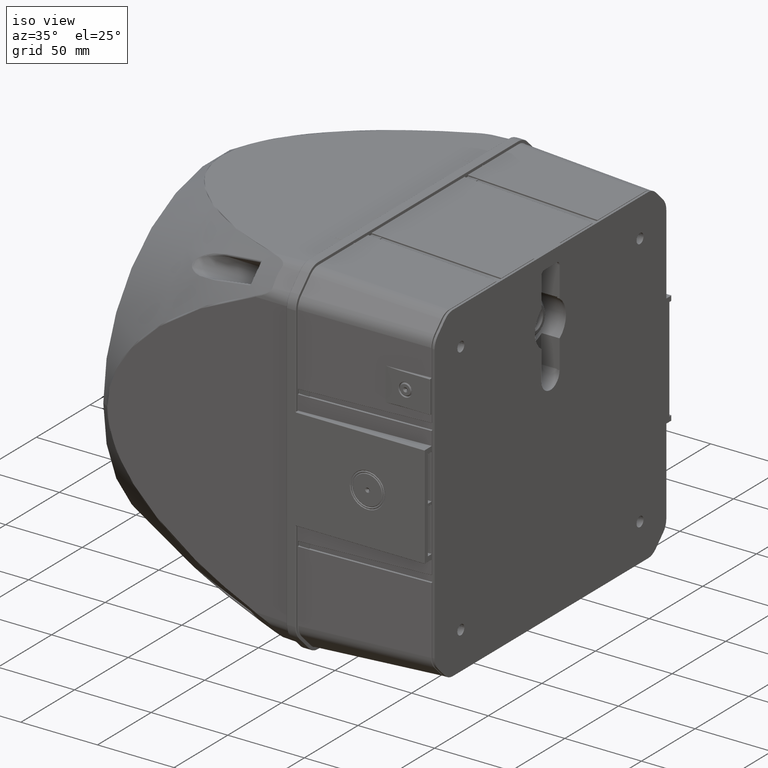
[diagram: clean part render]
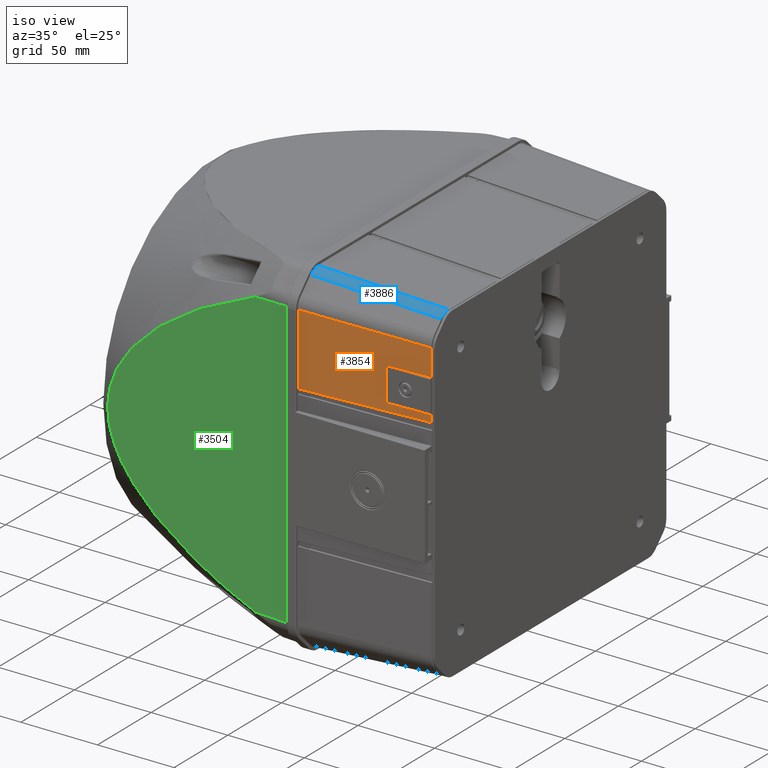
[diagram: same view with three faces highlighted in distinct colors, each labeled with its STEP entity id]
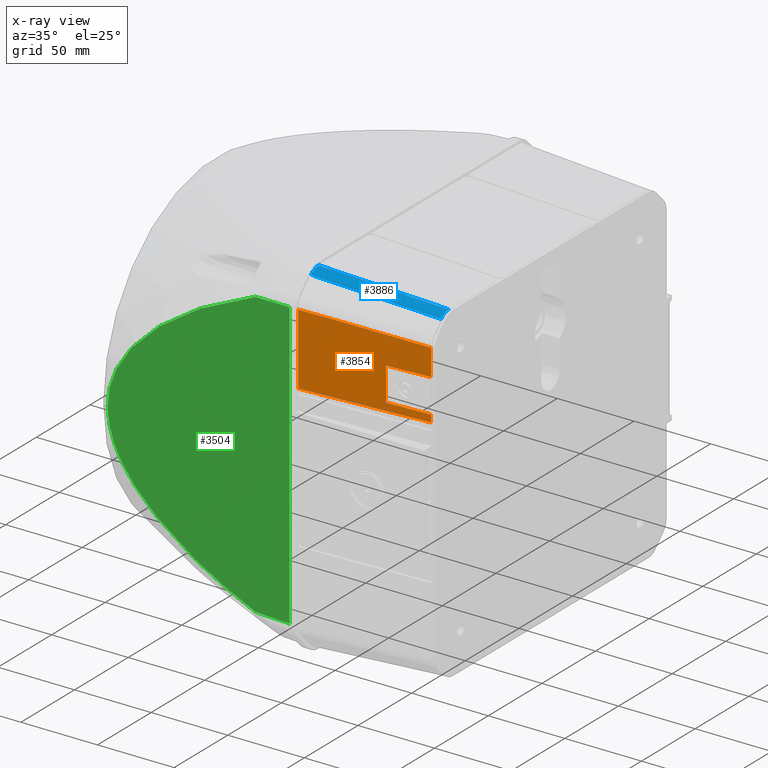
[diagram: x-ray of the same camera — body ghosted, the three highlighted faces saturated]
A machine part, iso view with three faces highlighted in distinct colors.
The next image is the same camera in x-ray (body ghosted, the three faces saturated) — at least one of them is partly hidden behind the body in this view.
Their STEP definitions:

[orange] entity #3854 — the highlighted planar face has unit normal (0.0523, -0.9986, -0).
#601=ELLIPSE('',#23725,0.450617555699064,0.45);
#3340=B_SPLINE_CURVE_WITH_KNOTS('',3,(#41978,#41979,#41980,#41981,#41982,
#41983,#41984,#41985,#41986,#41987),.UNSPECIFIED.,.F.,.F.,(4,3,3,4),(0.,
0.219196768796475,0.413723946201649,1.),.UNSPECIFIED.);
#3341=B_SPLINE_CURVE_WITH_KNOTS('',3,(#41991,#41992,#41993,#41994,#41995,
#41996,#41997,#41998,#41999,#42000),.UNSPECIFIED.,.F.,.F.,(4,3,3,4),(0.,
0.626730348909756,0.780695238212781,1.),.UNSPECIFIED.);
#3854=ADVANCED_FACE('',(#5703),#5143,.T.);
#5143=PLANE('',#23726);
#5703=FACE_OUTER_BOUND('',#7197,.T.);
#7197=EDGE_LOOP('',(#10398,#10399,#10400,#10401,#10402,#10403,#10404,#10405,
#10406,#10407,#10408));
#10398=ORIENTED_EDGE('',*,*,#18270,.T.);
#10399=ORIENTED_EDGE('',*,*,#18271,.T.);
#10400=ORIENTED_EDGE('',*,*,#18272,.T.);
#10401=ORIENTED_EDGE('',*,*,#18273,.T.);
#10402=ORIENTED_EDGE('',*,*,#18274,.T.);
#10403=ORIENTED_EDGE('',*,*,#18275,.T.);
#10404=ORIENTED_EDGE('',*,*,#18276,.T.);
#10405=ORIENTED_EDGE('',*,*,#18277,.T.);
#10406=ORIENTED_EDGE('',*,*,#18278,.T.);
#10407=ORIENTED_EDGE('',*,*,#18279,.T.);
#10408=ORIENTED_EDGE('',*,*,#18280,.T.);
#16008=VERTEX_POINT('',#41962);
#16009=VERTEX_POINT('',#41963);
#16010=VERTEX_POINT('',#41965);
#16011=VERTEX_POINT('',#41967);
#16012=VERTEX_POINT('',#41969);
#16013=VERTEX_POINT('',#41971);
#16014=VERTEX_POINT('',#41973);
#16015=VERTEX_POINT('',#41975);
#16016=VERTEX_POINT('',#41977);
#16017=VERTEX_POINT('',#41988);
#16018=VERTEX_POINT('',#41990);
#18270=EDGE_CURVE('',#16008,#16009,#20883,.T.);
#18271=EDGE_CURVE('',#16009,#16010,#20884,.T.);
#18272=EDGE_CURVE('',#16010,#16011,#20885,.T.);
#18273=EDGE_CURVE('',#16011,#16012,#20886,.T.);
#18274=EDGE_CURVE('',#16012,#16013,#601,.T.);
#18275=EDGE_CURVE('',#16013,#16014,#20887,.T.);
#18276=EDGE_CURVE('',#16014,#16015,#20888,.T.);
#18277=EDGE_CURVE('',#16015,#16016,#20889,.T.);
#18278=EDGE_CURVE('',#16016,#16017,#3340,.T.);
#18279=EDGE_CURVE('',#16017,#16018,#20890,.T.);
#18280=EDGE_CURVE('',#16018,#16008,#3341,.T.);
#20883=LINE('',#41961,#22250);
#20884=LINE('',#41964,#22251);
#20885=LINE('',#41966,#22252);
#20886=LINE('',#41968,#22253);
#20887=LINE('',#41972,#22254);
#20888=LINE('',#41974,#22255);
#20889=LINE('',#41976,#22256);
#20890=LINE('',#41989,#22257);
#22250=VECTOR('',#27850,1.);
#22251=VECTOR('',#27851,1.);
#22252=VECTOR('',#27852,1.);
#22253=VECTOR('',#27853,1.);
#22254=VECTOR('',#27856,1.);
#22255=VECTOR('',#27857,1.);
#22256=VECTOR('',#27858,1.);
#22257=VECTOR('',#27859,1.);
#23725=AXIS2_PLACEMENT_3D('',#41970,#27854,#27855);
#23726=AXIS2_PLACEMENT_3D('',#42001,#27860,#27861);
#27850=DIRECTION('',(0.0523359562429438,2.60948728907295E-016,-0.998629534754574));
#27851=DIRECTION('',(0.,-1.,0.));
#27852=DIRECTION('',(-0.0523236630107089,-0.0216731708520751,0.998394965909964));
#27853=DIRECTION('',(0.,1.,0.));
#27854=DIRECTION('',(0.998629534754574,1.23259516440783E-032,0.0523359562429438));
#27855=DIRECTION('',(0.0523359562429438,-1.16994743359398E-015,-0.998629534754574));
#27856=DIRECTION('',(0.0523339689081494,-0.00871457699362754,-0.998591614147717));
#27857=DIRECTION('',(0.,-1.,0.));
#27858=DIRECTION('',(-0.0523359562429438,2.17457274089412E-016,0.998629534754574));
#27859=DIRECTION('',(0.,-1.,0.));
#27860=DIRECTION('',(-0.998629534754574,0.,-0.0523359562429438));
#27861=DIRECTION('',(-0.0523359562429438,0.,0.998629534754574));
#41961=CARTESIAN_POINT('',(-112.5,-74.0000000000001,-128.348824256376));
#41962=CARTESIAN_POINT('',(-109.283025771477,-74.0000000000001,-189.732349231717));
#41963=CARTESIAN_POINT('',(-107.793232858134,-74.0000000000001,-218.159291447624));
#41964=CARTESIAN_POINT('',(-107.793232858134,-5.55111512312578E-014,-218.159291447624));
#41965=CARTESIAN_POINT('',(-107.793232858134,-91.4139342440904,-218.159291447624));
#41966=CARTESIAN_POINT('',(-112.394123906328,-93.3196857152532,-130.369060471694));
#41967=CARTESIAN_POINT('',(-112.173137082292,-93.2281499756317,-134.585740267315));
#41968=CARTESIAN_POINT('',(-112.173137082292,-5.55111512312578E-014,-134.585740267315));
#41969=CARTESIAN_POINT('',(-112.173137082292,-46.6099153176139,-134.585740267315));
#41970=CARTESIAN_POINT('',(-112.171902817232,-46.1605320269743,-134.609291447624));
#41971=CARTESIAN_POINT('',(-112.172108619488,-46.6105148923532,-134.60536450665));
#41972=CARTESIAN_POINT('',(-107.78339104002,-47.3413178115181,-218.347084524319));
#41973=CARTESIAN_POINT('',(-107.793232858134,-47.3396789661658,-218.159291447624));
#41974=CARTESIAN_POINT('',(-107.793232858134,-5.55111512312578E-014,-218.159291447624));
#41975=CARTESIAN_POINT('',(-107.793232858134,-52.,-218.159291447624));
#41976=CARTESIAN_POINT('',(-112.5,-52.,-128.348824256376));
#41977=CARTESIAN_POINT('',(-109.283025771477,-52.,-189.732349231718));
#41978=CARTESIAN_POINT('',(-109.283025771477,-52.,-189.732349231718));
#41979=CARTESIAN_POINT('',(-109.283062724563,-52.0013172734672,-189.731644124842));
#41980=CARTESIAN_POINT('',(-109.283104662383,-52.0025877684073,-189.730843903554));
#41981=CARTESIAN_POINT('',(-109.283136630734,-52.0039518204016,-189.73023391109));
#41982=CARTESIAN_POINT('',(-109.283165307099,-52.0051754072525,-189.729686733446));
#41983=CARTESIAN_POINT('',(-109.283190005927,-52.0064354898401,-189.729215451735));
#41984=CARTESIAN_POINT('',(-109.283210758362,-52.0077161770088,-189.728819471682));
#41985=CARTESIAN_POINT('',(-109.283272635925,-52.0115348035788,-189.72763877745));
#41986=CARTESIAN_POINT('',(-109.283299864526,-52.0155896454544,-189.727119224783));
#41987=CARTESIAN_POINT('',(-109.283299864526,-52.0195871167279,-189.727119224783));
#41988=CARTESIAN_POINT('',(-109.283299864526,-52.0195871167279,-189.727119224783));
#41989=CARTESIAN_POINT('',(-109.283299864526,-52.5,-189.727119224783));
#41990=CARTESIAN_POINT('',(-109.283299864526,-73.9804128832723,-189.727119224783));
#41991=CARTESIAN_POINT('',(-109.283299864526,-73.9804128832723,-189.727119224783));
#41992=CARTESIAN_POINT('',(-109.283299864526,-73.9846840844638,-189.727119224783));
#41993=CARTESIAN_POINT('',(-109.283268635695,-73.9890276110654,-189.727715106375));
#41994=CARTESIAN_POINT('',(-109.283197372219,-73.9930759511389,-189.729074894515));
#41995=CARTESIAN_POINT('',(-109.283179626477,-73.9940840523434,-189.729413503435));
#41996=CARTESIAN_POINT('',(-109.283159380715,-73.9950774671011,-189.72979981558));
#41997=CARTESIAN_POINT('',(-109.2831366308,-73.9960481800263,-189.73023390982));
#41998=CARTESIAN_POINT('',(-109.283104662469,-73.9974122322637,-189.730843901924));
#41999=CARTESIAN_POINT('',(-109.283062724585,-73.9986827266755,-189.731644124418));
#42000=CARTESIAN_POINT('',(-109.283025771477,-74.0000000000001,-189.732349231717));
#42001=CARTESIAN_POINT('',(-112.5,-5.55111512312578E-014,-128.348824256376));

[blue] entity #3886 — the highlighted cylindrical surface (edge-blend (fillet) strip) has radius 10 mm, axis along (0.9984, 0.0217, -0.0523).
#633=ELLIPSE('',#23804,10.0154400190644,10.);
#634=ELLIPSE('',#23805,10.0168893122903,10.);
#1060=CYLINDRICAL_SURFACE('',#23806,10.);
#3886=ADVANCED_FACE('',(#5729),#1060,.T.);
#5729=FACE_OUTER_BOUND('',#7235,.T.);
#7235=EDGE_LOOP('',(#10606,#10607,#10608,#10609));
#10606=ORIENTED_EDGE('',*,*,#18458,.F.);
#10607=ORIENTED_EDGE('',*,*,#18468,.T.);
#10608=ORIENTED_EDGE('',*,*,#18135,.F.);
#10609=ORIENTED_EDGE('',*,*,#18469,.T.);
#15884=VERTEX_POINT('',#41628);
#15885=VERTEX_POINT('',#41629);
#16190=VERTEX_POINT('',#42457);
#16191=VERTEX_POINT('',#42459);
#18135=EDGE_CURVE('',#15884,#15885,#20776,.T.);
#18458=EDGE_CURVE('',#16190,#16191,#21018,.T.);
#18468=EDGE_CURVE('',#16190,#15885,#633,.T.);
#18469=EDGE_CURVE('',#15884,#16191,#634,.T.);
#20776=LINE('',#41627,#22143);
#21018=LINE('',#42458,#22385);
#22143=VECTOR('',#27653,1.);
#22385=VECTOR('',#28127,1.);
#23804=AXIS2_PLACEMENT_3D('',#42477,#28149,#28150);
#23805=AXIS2_PLACEMENT_3D('',#42478,#28151,#28152);
#23806=AXIS2_PLACEMENT_3D('',#42479,#28153,#28154);
#27653=DIRECTION('',(0.021673170852075,0.0523236630107089,-0.998394965909964));
#28127=DIRECTION('',(-0.021673170852075,-0.0523236630107089,0.998394965909964));
#28149=DIRECTION('',(-0.000432795180457767,-0.00104485999439085,0.999999360477757));
#28150=DIRECTION('',(0.382683187630523,0.923878941669776,0.00113094830832621));
#28151=DIRECTION('',(-0.000540915701880472,-0.0013058860235804,-0.999999001035449));
#28152=DIRECTION('',(0.382683050077906,0.923878609588385,-0.00141348084639427));
#28153=DIRECTION('',(0.021673170852075,0.0523236630107089,-0.998394965909964));
#28154=DIRECTION('',(0.,0.998629534754573,0.0523359562429437));
#41627=CARTESIAN_POINT('',(-93.3196857152531,-112.394123906328,-130.369060471694));
#41628=CARTESIAN_POINT('',(-93.2281499756316,-112.173137082292,-134.585740267315));
#41629=CARTESIAN_POINT('',(-91.4139342440903,-107.793232858134,-218.159291447624));
#42457=CARTESIAN_POINT('',(-98.4753114032716,-104.86831466977,-218.159291447624));
#42458=CARTESIAN_POINT('',(-100.421878991926,-109.567744542376,-128.488827694031));
#42459=CARTESIAN_POINT('',(-100.289527134813,-109.248218893927,-134.585740267315));
#42477=CARTESIAN_POINT('',(-91.4028003698533,-97.7800579604037,-218.148824256376));
#42478=CARTESIAN_POINT('',(-93.2165048520674,-102.158727919502,-134.598824256376));
#42479=CARTESIAN_POINT('',(-93.3196857152531,-102.407828558782,-129.845700909264));

[green] entity #3504 — the highlighted planar face has unit normal (-0.0436, -0.999, -0).
#3140=B_SPLINE_CURVE_WITH_KNOTS('',3,(#34269,#34270,#34271,#34272,#34273,
#34274,#34275,#34276,#34277,#34278,#34279,#34280,#34281,#34282,#34283,#34284,
#34285,#34286,#34287,#34288,#34289,#34290,#34291,#34292,#34293,#34294,#34295,
#34296,#34297,#34298,#34299,#34300,#34301,#34302,#34303,#34304,#34305,#34306,
#34307,#34308,#34309,#34310,#34311,#34312,#34313,#34314,#34315,#34316,#34317,
#34318,#34319,#34320,#34321,#34322,#34323,#34324,#34325,#34326,#34327,#34328,
#34329,#34330,#34331,#34332,#34333,#34334,#34335,#34336,#34337,#34338,#34339,
#34340),.UNSPECIFIED.,.F.,.F.,(4,2,2,2,2,2,2,2,2,2,2,2,2,2,2,2,2,2,2,2,2,
2,2,2,2,2,2,2,2,2,2,2,2,2,2,4),(0.,0.0624999999999997,0.124999999999999,
0.187499999999999,0.249999999999999,0.265624999999999,0.281249999999999,
0.312499999999999,0.328124999999999,0.343749999999999,0.374999999999998,
0.406249999999998,0.421874999999998,0.429687499999998,0.437499999999998,
0.468749999999998,0.484374999999998,0.492187499999999,0.499999999999998,
0.531249999999999,0.546874999999999,0.554687499999999,0.562499999999999,
0.593749999999999,0.609374999999999,0.617187499999999,0.624999999999999,
0.656249999999999,0.687499999999999,0.718749999999999,0.734374999999999,
0.749999999999999,0.812499999999999,0.875,0.9375,1.),.UNSPECIFIED.);
#3504=ADVANCED_FACE('',(#5396),#5009,.T.);
#5009=PLANE('',#23069);
#5396=FACE_OUTER_BOUND('',#6789,.T.);
#6789=EDGE_LOOP('',(#8641,#8642,#8643,#8644));
#8641=ORIENTED_EDGE('',*,*,#17132,.T.);
#8642=ORIENTED_EDGE('',*,*,#17105,.F.);
#8643=ORIENTED_EDGE('',*,*,#17133,.T.);
#8644=ORIENTED_EDGE('',*,*,#17134,.T.);
#15138=VERTEX_POINT('',#34195);
#15139=VERTEX_POINT('',#34197);
#15160=VERTEX_POINT('',#34266);
#15161=VERTEX_POINT('',#34268);
#17105=EDGE_CURVE('',#15138,#15139,#20317,.T.);
#17132=EDGE_CURVE('',#15160,#15139,#20333,.T.);
#17133=EDGE_CURVE('',#15138,#15161,#20334,.T.);
#17134=EDGE_CURVE('',#15161,#15160,#3140,.T.);
#20317=LINE('',#34196,#21684);
#20333=LINE('',#34265,#21700);
#20334=LINE('',#34267,#21701);
#21684=VECTOR('',#25948,1.);
#21700=VECTOR('',#25988,1.);
#21701=VECTOR('',#25989,1.);
#23069=AXIS2_PLACEMENT_3D('',#34341,#25990,#25991);
#25948=DIRECTION('',(1.85037170770859E-016,1.,0.));
#25988=DIRECTION('',(-0.0436122694797137,0.0180647935043676,-0.998885195198364));
#25989=DIRECTION('',(0.0436122694797137,0.0180647935043676,0.998885195198364));
#25990=DIRECTION('',(-0.999048221581858,1.84861056385166E-016,0.043619387365336));
#25991=DIRECTION('',(0.043619387365336,0.,0.999048221581858));
#34195=CARTESIAN_POINT('',(-112.5,-93.3618067715608,-129.049104419422));
#34196=CARTESIAN_POINT('',(-112.5,4.49640324973188E-015,-129.049104419422));
#34197=CARTESIAN_POINT('',(-112.5,93.3618067715607,-129.049104419422));
#34265=CARTESIAN_POINT('',(-112.503260261641,93.3631572161492,-129.123776687667));
#34266=CARTESIAN_POINT('',(-111.499279011918,92.9472945661459,-106.128825529007));
#34267=CARTESIAN_POINT('',(-111.962492053813,-93.1391636903666,-116.738148439526));
#34268=CARTESIAN_POINT('',(-111.499279011918,-92.947294566146,-106.128825529007));
#34269=CARTESIAN_POINT('',(-111.499279011918,-92.947294566146,-106.128825529007));
#34270=CARTESIAN_POINT('',(-111.255787733052,-90.7674651968712,-100.551958364771));
#34271=CARTESIAN_POINT('',(-111.015687624617,-88.4457372443455,-95.0527617730111));
#34272=CARTESIAN_POINT('',(-110.542882478511,-83.4928453831519,-84.2237435565114));
#34273=CARTESIAN_POINT('',(-110.310170533669,-80.861970495009,-78.8937637315337));
#34274=CARTESIAN_POINT('',(-109.853149600512,-75.248611252118,-68.4262634277792));
#34275=CARTESIAN_POINT('',(-109.628825924524,-72.2667414816175,-63.2884065459937));
#34276=CARTESIAN_POINT('',(-109.190293453209,-65.8797595041578,-53.2443616376212));
#34277=CARTESIAN_POINT('',(-108.976048886871,-62.4761440830155,-48.3373543201814));
#34278=CARTESIAN_POINT('',(-108.716504522525,-57.8759409274105,-42.3928110497943));
#34279=CARTESIAN_POINT('',(-108.665077017295,-56.9394517093852,-41.2149275272552));
#34280=CARTESIAN_POINT('',(-108.563575706746,-55.0370883425596,-38.8901653075875));
#34281=CARTESIAN_POINT('',(-108.513455816374,-54.0704071301933,-37.7422310891924));
#34282=CARTESIAN_POINT('',(-108.365130037373,-51.120385490806,-34.3450122221702));
#34283=CARTESIAN_POINT('',(-108.268946590825,-49.0873484185358,-32.1420491127936));
#34284=CARTESIAN_POINT('',(-108.129460154023,-45.9201212246919,-28.9472844670935));
#34285=CARTESIAN_POINT('',(-108.083765385739,-44.8447032901752,-27.9007022075248));
#34286=CARTESIAN_POINT('',(-107.994139853759,-42.6505212551148,-25.8479400358882));
#34287=CARTESIAN_POINT('',(-107.950157352713,-41.5303864156858,-24.8405751437178));
#34288=CARTESIAN_POINT('',(-107.821502126761,-38.1069941951815,-21.8938860119169));
#34289=CARTESIAN_POINT('',(-107.740575014404,-35.7540540049691,-20.0403504039816));
#34290=CARTESIAN_POINT('',(-107.590246528731,-30.8799683948882,-16.5972620128877));
#34291=CARTESIAN_POINT('',(-107.52083220644,-28.3590119507878,-15.0074126494311));
#34292=CARTESIAN_POINT('',(-107.427340046936,-24.4224542277396,-12.8660901475274));
#34293=CARTESIAN_POINT('',(-107.397955091165,-23.0843043896592,-12.1930640098961));
#34294=CARTESIAN_POINT('',(-107.356885566382,-21.0331825773431,-11.2524172430811));
#34295=CARTESIAN_POINT('',(-107.343697772415,-20.3421484847444,-10.9503671019495));
#34296=CARTESIAN_POINT('',(-107.318392878237,-18.9444547254519,-10.3707897384852));
#34297=CARTESIAN_POINT('',(-107.306296919044,-18.2387691384284,-10.0937467250433));
#34298=CARTESIAN_POINT('',(-107.249140036576,-14.7003948984565,-8.78463888950916));
#34299=CARTESIAN_POINT('',(-107.213615151618,-11.8157132530534,-7.9709852533086));
#34300=CARTESIAN_POINT('',(-107.177526890604,-7.39767236943066,-7.1444281839938));
#34301=CARTESIAN_POINT('',(-107.168368241349,-5.9097997947478,-6.9346606287112));
#34302=CARTESIAN_POINT('',(-107.159216053933,-3.65372269583967,-6.72504107387889));
#34303=CARTESIAN_POINT('',(-107.156926859561,-2.89565247729088,-6.67260990267497));
#34304=CARTESIAN_POINT('',(-107.153945465276,-1.38159013825681,-6.6043247469859));
#34305=CARTESIAN_POINT('',(-107.153250572816,-0.626748968198349,-6.58840909299007));
#34306=CARTESIAN_POINT('',(-107.153686975156,3.1366944530101,-6.59840434987692));
#34307=CARTESIAN_POINT('',(-107.166542870502,6.11303141414592,-6.89285276278583));
#34308=CARTESIAN_POINT('',(-107.20337615921,10.5292419947494,-7.73647377173147));
#34309=CARTESIAN_POINT('',(-107.218580408241,11.9932587008058,-8.08470832689095));
#34310=CARTESIAN_POINT('',(-107.24563966494,14.1775801195206,-8.70446719822058));
#34311=CARTESIAN_POINT('',(-107.255365931831,14.9032056611515,-8.92723533475231));
#34312=CARTESIAN_POINT('',(-107.275997589841,16.3369813565186,-9.39977799268906));
#34313=CARTESIAN_POINT('',(-107.286924026705,17.0469018300298,-9.65003454092445));
#34314=CARTESIAN_POINT('',(-107.344441968143,20.5635761092179,-10.9674119864307));
#34315=CARTESIAN_POINT('',(-107.399640367078,23.2721204789928,-12.2316631742833));
#34316=CARTESIAN_POINT('',(-107.493673631738,27.2067318531625,-14.38537902183));
#34317=CARTESIAN_POINT('',(-107.526900744846,28.4967864235897,-15.1464050302912));
#34318=CARTESIAN_POINT('',(-107.579323426835,30.4024060872281,-16.3470818479941));
#34319=CARTESIAN_POINT('',(-107.597228434674,31.0326971973577,-16.7571739496882));
#34320=CARTESIAN_POINT('',(-107.633864563171,32.2838530124025,-17.5962792473888));
#34321=CARTESIAN_POINT('',(-107.652622709094,32.9055746333334,-18.0259114237305));
#34322=CARTESIAN_POINT('',(-107.748015228595,35.9793698573815,-20.2107593254536));
#34323=CARTESIAN_POINT('',(-107.82932303118,38.325870482794,-22.0730141731143));
#34324=CARTESIAN_POINT('',(-107.999843180297,42.8407419428081,-25.9785676897676));
#34325=CARTESIAN_POINT('',(-108.089068126197,45.0088288492267,-28.0221549317326));
#34326=CARTESIAN_POINT('',(-108.274067811703,49.1974023209843,-32.2593443550914));
#34327=CARTESIAN_POINT('',(-108.36984915069,51.2177401685221,-34.4530976871651));
#34328=CARTESIAN_POINT('',(-108.517726551716,54.15347794374,-37.8400470101769));
#34329=CARTESIAN_POINT('',(-108.567722601384,55.1162018874295,-38.9851448101268));
#34330=CARTESIAN_POINT('',(-108.669029447157,57.0120218153469,-41.3054530541541));
#34331=CARTESIAN_POINT('',(-108.720395820087,57.9460907022658,-42.4819364168148));
#34332=CARTESIAN_POINT('',(-108.97965025922,62.5350294501229,-48.4198393081144));
#34333=CARTESIAN_POINT('',(-109.193628431853,65.9309729961267,-53.3207452065752));
#34334=CARTESIAN_POINT('',(-109.631585225122,72.3042507598597,-63.3516049199676));
#34335=CARTESIAN_POINT('',(-109.855599179851,75.2801059258118,-68.4823680186512));
#34336=CARTESIAN_POINT('',(-110.311968860838,80.8826375634008,-78.9349521953965));
#34337=CARTESIAN_POINT('',(-110.544339124222,83.5087055246975,-84.2571062283544));
#34338=CARTESIAN_POINT('',(-111.016434825276,88.4529607836801,-95.0698754817273));
#34339=CARTESIAN_POINT('',(-111.256167108862,90.7708615178228,-100.560647499371));
#34340=CARTESIAN_POINT('',(-111.499279011918,92.947294566146,-106.128825529007));
#34341=CARTESIAN_POINT('',(-112.5,4.49640324973188E-015,-129.049104419422));